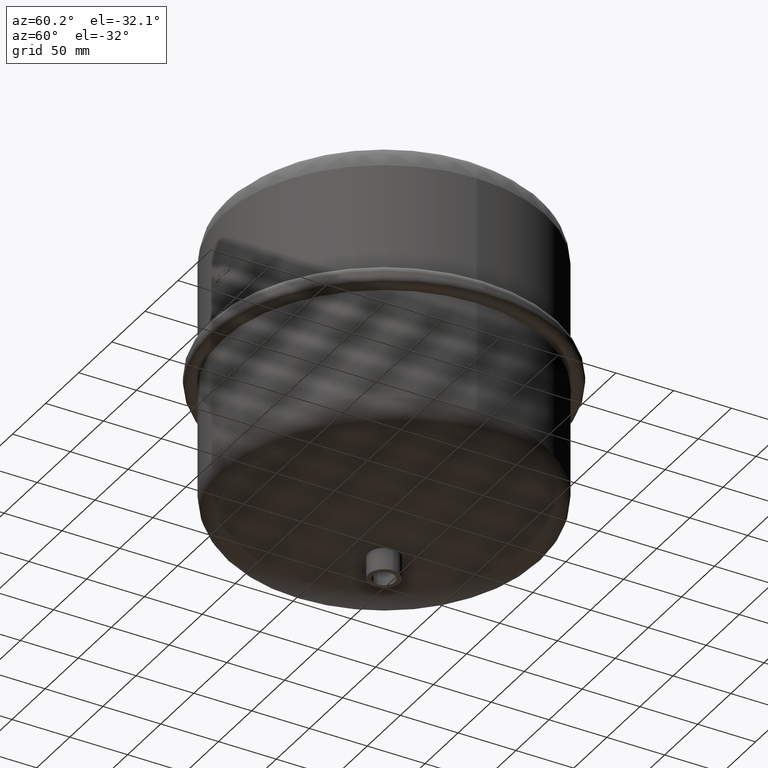
[diagram: clean part render]
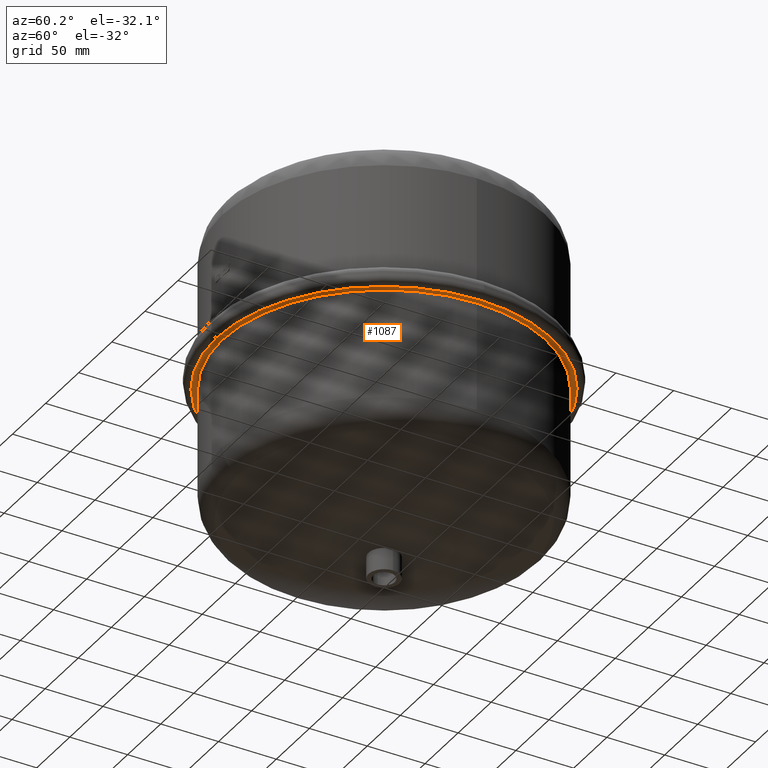
[diagram: same view with one face highlighted and labeled with its STEP entity id]
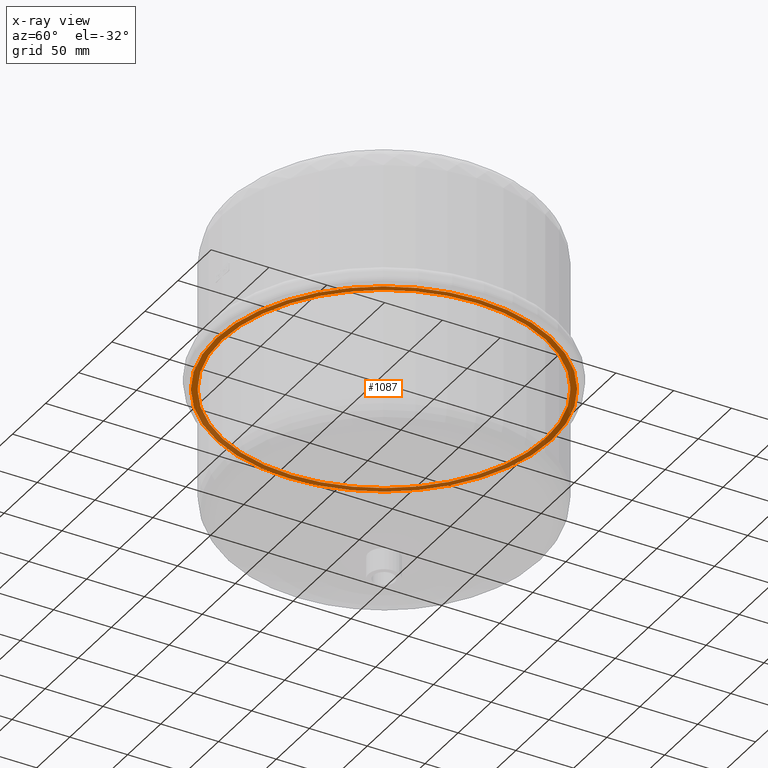
[diagram: x-ray of the same camera — body ghosted, the highlighted face saturated]
A machine part, auxiliary view. The second image highlights one B-rep face of the part: STEP entity #1087.
The next image is the same camera in x-ray: the body ghosted, the highlighted face saturated — about 43% of this face is hidden behind the body in this view.
In plain terms, the highlighted planar face has unit normal (0, 0, -1).
Its self-contained STEP definition (entity closure, byte-faithful):
#956=CARTESIAN_POINT('',(-1.540744E-031,-145.00000000000003,168.0));
#957=VERTEX_POINT('',#956);
#973=CARTESIAN_POINT('',(-1.775679E-014,145.00000000000003,168.0));
#974=VERTEX_POINT('',#973);
#982=CARTESIAN_POINT('',(-145.00000000000003,0.0,168.0));
#983=VERTEX_POINT('',#982);
#984=CARTESIAN_POINT('',(0.0,0.0,168.0));
#985=DIRECTION('',(0.0,0.0,1.0));
#986=DIRECTION('',(-1.0,0.0,0.0));
#987=AXIS2_PLACEMENT_3D('',#984,#985,#986);
#988=CIRCLE('',#987,145.00000000000003);
#989=EDGE_CURVE('',#974,#983,#988,.T.);
#991=CARTESIAN_POINT('',(0.0,0.0,168.0));
#992=DIRECTION('',(0.0,0.0,1.0));
#993=DIRECTION('',(-1.0,0.0,0.0));
#994=AXIS2_PLACEMENT_3D('',#991,#992,#993);
#995=CIRCLE('',#994,145.00000000000003);
#996=EDGE_CURVE('',#983,#957,#995,.T.);
#1008=CARTESIAN_POINT('',(-140.0,0.0,168.0));
#1009=VERTEX_POINT('',#1008);
#1025=CARTESIAN_POINT('',(140.0,1.709874E-014,168.0));
#1026=VERTEX_POINT('',#1025);
#1033=CARTESIAN_POINT('',(-8.758115E-047,0.0,168.0));
#1034=DIRECTION('',(0.0,0.0,1.0));
#1035=DIRECTION('',(-1.0,0.0,0.0));
#1036=AXIS2_PLACEMENT_3D('',#1033,#1034,#1035);
#1037=CIRCLE('',#1036,140.0);
#1038=EDGE_CURVE('',#1009,#1026,#1037,.T.);
#1049=CARTESIAN_POINT('',(-8.758115E-047,0.0,168.0));
#1050=DIRECTION('',(0.0,0.0,1.0));
#1051=DIRECTION('',(-1.0,0.0,0.0));
#1052=AXIS2_PLACEMENT_3D('',#1049,#1050,#1051);
#1053=CIRCLE('',#1052,140.0);
#1054=EDGE_CURVE('',#1026,#1009,#1053,.T.);
#1067=CARTESIAN_POINT('',(-142.5,0.0,168.0));
#1068=DIRECTION('',(0.0,0.0,-1.0));
#1069=DIRECTION('',(0.0,1.0,0.0));
#1070=AXIS2_PLACEMENT_3D('',#1067,#1068,#1069);
#1071=PLANE('',#1070);
#1072=ORIENTED_EDGE('',*,*,#996,.F.);
#1073=ORIENTED_EDGE('',*,*,#989,.F.);
#1074=CARTESIAN_POINT('',(0.0,0.0,168.0));
#1075=DIRECTION('',(0.0,0.0,1.0));
#1076=DIRECTION('',(-1.0,0.0,0.0));
#1077=AXIS2_PLACEMENT_3D('',#1074,#1075,#1076);
#1078=CIRCLE('',#1077,145.00000000000003);
#1079=EDGE_CURVE('',#957,#974,#1078,.T.);
#1080=ORIENTED_EDGE('',*,*,#1079,.F.);
#1081=EDGE_LOOP('',(#1072,#1073,#1080));
#1082=FACE_OUTER_BOUND('',#1081,.T.);
#1083=ORIENTED_EDGE('',*,*,#1038,.T.);
#1084=ORIENTED_EDGE('',*,*,#1054,.T.);
#1085=EDGE_LOOP('',(#1083,#1084));
#1086=FACE_BOUND('',#1085,.T.);
#1087=ADVANCED_FACE('',(#1082,#1086),#1071,.T.);